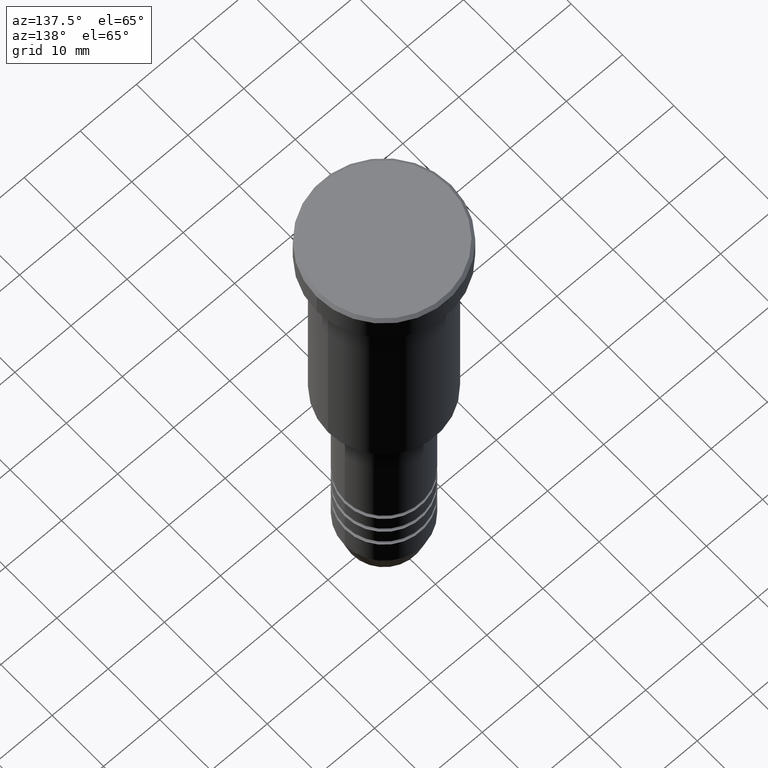
[diagram: clean part render]
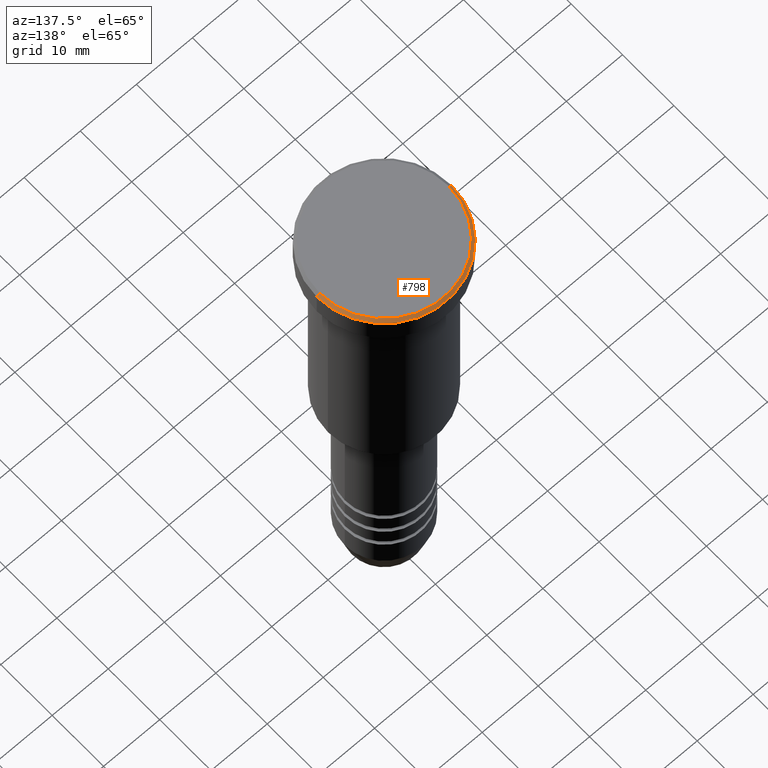
[diagram: same view with one face highlighted and labeled with its STEP entity id]
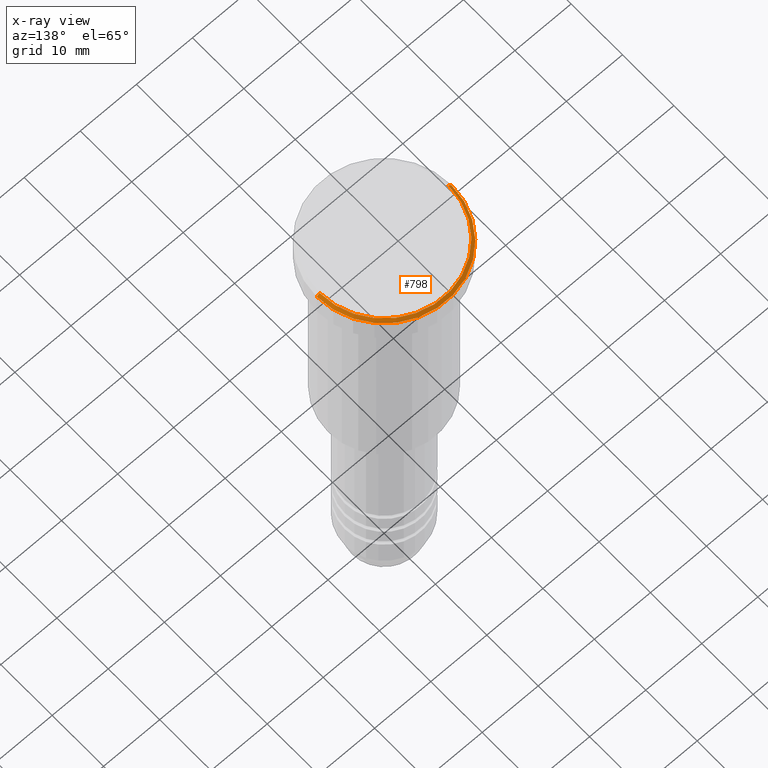
[diagram: x-ray of the same camera — body ghosted, the highlighted face saturated]
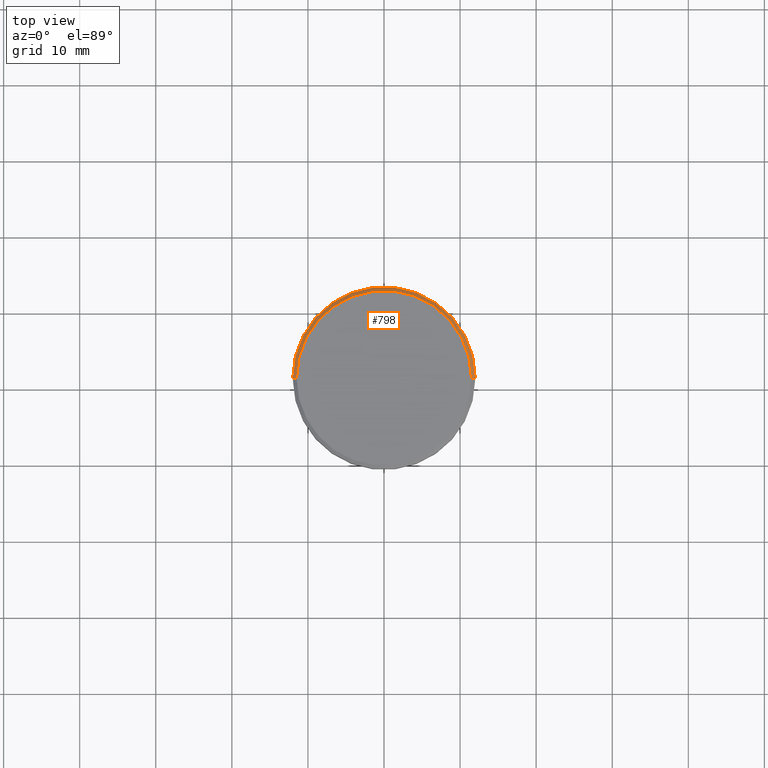
[diagram: same view with one face highlighted and labeled with its STEP entity id]
A machine part, auxiliary view. The second image highlights one B-rep face of the part: STEP entity #798.
The next image is the same camera in x-ray: the body ghosted, the highlighted face saturated — about 0% of this face is hidden behind the body in this view.
A second angle (top view) of the same face is appended — the face is thin or edge-on in the first view.
In plain terms, the highlighted conical surface has half-angle 45 deg.
Its self-contained STEP definition (entity closure, byte-faithful):
#37 = EDGE_LOOP ( 'NONE', ( #555, #618, #1147, #1175 ) ) ;
#62 = VECTOR ( 'NONE', #895, 1000.000000000000114 ) ;
#94 = CARTESIAN_POINT ( 'NONE',  ( 0.000000000000000000, 0.000000000000000000, 0.000000000000000000 ) ) ;
#122 = EDGE_CURVE ( 'NONE', #1057, #1162, #626, .T. ) ;
#131 = CARTESIAN_POINT ( 'NONE',  ( 12.00000000000000000, 0.000000000000000000, -0.5000000000000056621 ) ) ;
#167 = EDGE_CURVE ( 'NONE', #337, #1057, #962, .T. ) ;
#221 = DIRECTION ( 'NONE',  ( -1.000000000000000000, 0.000000000000000000, 0.000000000000000000 ) ) ;
#310 = CARTESIAN_POINT ( 'NONE',  ( 11.49999999999999467, 1.438959988998139766E-15, 0.000000000000000000 ) ) ;
#337 = VERTEX_POINT ( 'NONE', #310 ) ;
#361 = CARTESIAN_POINT ( 'NONE',  ( -11.49999999999999467, 0.000000000000000000, 0.000000000000000000 ) ) ;
#389 = CIRCLE ( 'NONE', #486, 12.00000000000000000 ) ;
#397 = CARTESIAN_POINT ( 'NONE',  ( 11.49999999999999467, 1.408343819019455584E-15, 0.000000000000000000 ) ) ;
#406 = VERTEX_POINT ( 'NONE', #131 ) ;
#435 = DIRECTION ( 'NONE',  ( 0.7071067811865474617, 8.659560562354932858E-17, -0.7071067811865474617 ) ) ;
#438 = DIRECTION ( 'NONE',  ( 1.000000000000000000, 0.000000000000000000, 0.000000000000000000 ) ) ;
#459 = DIRECTION ( 'NONE',  ( -0.000000000000000000, -0.000000000000000000, 1.000000000000000000 ) ) ;
#473 = CARTESIAN_POINT ( 'NONE',  ( -12.00000000000000000, 1.469576158976823947E-15, -0.5000000000000056621 ) ) ;
#486 = AXIS2_PLACEMENT_3D ( 'NONE', #629, #726, #1159 ) ;
#540 = AXIS2_PLACEMENT_3D ( 'NONE', #94, #459, #438 ) ;
#555 = ORIENTED_EDGE ( 'NONE', *, *, #167, .F. ) ;
#596 = EDGE_CURVE ( 'NONE', #1162, #406, #389, .T. ) ;
#618 = ORIENTED_EDGE ( 'NONE', *, *, #807, .T. ) ;
#626 = LINE ( 'NONE', #361, #62 ) ;
#629 = CARTESIAN_POINT ( 'NONE',  ( 0.000000000000000000, 0.000000000000000000, -0.5000000000000056621 ) ) ;
#652 = CARTESIAN_POINT ( 'NONE',  ( -11.49999999999999467, 0.000000000000000000, 0.000000000000000000 ) ) ;
#668 = FACE_OUTER_BOUND ( 'NONE', #37, .T. ) ;
#694 = AXIS2_PLACEMENT_3D ( 'NONE', #892, #1073, #221 ) ;
#726 = DIRECTION ( 'NONE',  ( 0.000000000000000000, 0.000000000000000000, -1.000000000000000000 ) ) ;
#782 = LINE ( 'NONE', #397, #886 ) ;
#798 = ADVANCED_FACE ( 'NONE', ( #668 ), #1041, .T. ) ;
#807 = EDGE_CURVE ( 'NONE', #337, #406, #782, .T. ) ;
#886 = VECTOR ( 'NONE', #435, 1000.000000000000114 ) ;
#892 = CARTESIAN_POINT ( 'NONE',  ( 0.000000000000000000, 0.000000000000000000, 0.000000000000000000 ) ) ;
#895 = DIRECTION ( 'NONE',  ( -0.7071067811865474617, 0.000000000000000000, -0.7071067811865474617 ) ) ;
#962 = CIRCLE ( 'NONE', #540, 11.49999999999999467 ) ;
#1041 = CONICAL_SURFACE ( 'NONE', #694, 11.49999999999999467, 0.7853981633974482790 ) ;
#1057 = VERTEX_POINT ( 'NONE', #652 ) ;
#1073 = DIRECTION ( 'NONE',  ( 0.000000000000000000, 0.000000000000000000, -1.000000000000000000 ) ) ;
#1147 = ORIENTED_EDGE ( 'NONE', *, *, #596, .F. ) ;
#1159 = DIRECTION ( 'NONE',  ( 1.000000000000000000, 0.000000000000000000, 0.000000000000000000 ) ) ;
#1162 = VERTEX_POINT ( 'NONE', #473 ) ;
#1175 = ORIENTED_EDGE ( 'NONE', *, *, #122, .F. ) ;